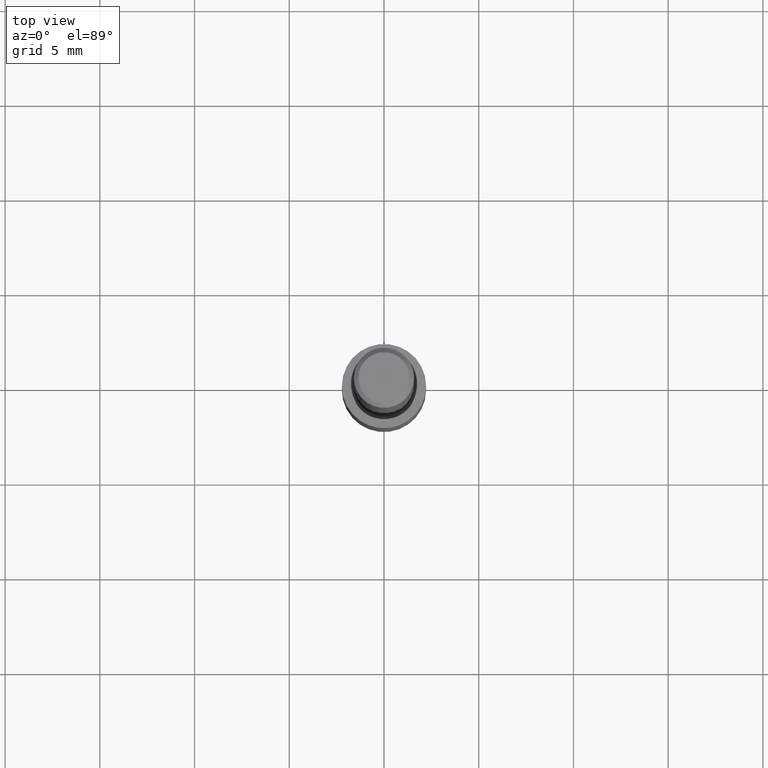
[diagram: clean part render]
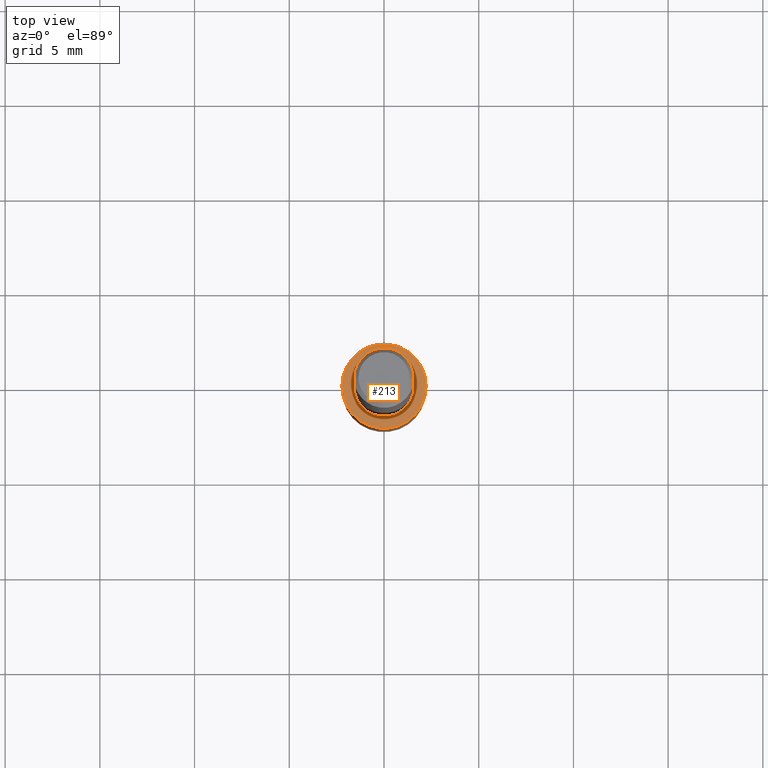
[diagram: same view with one face highlighted and labeled with its STEP entity id]
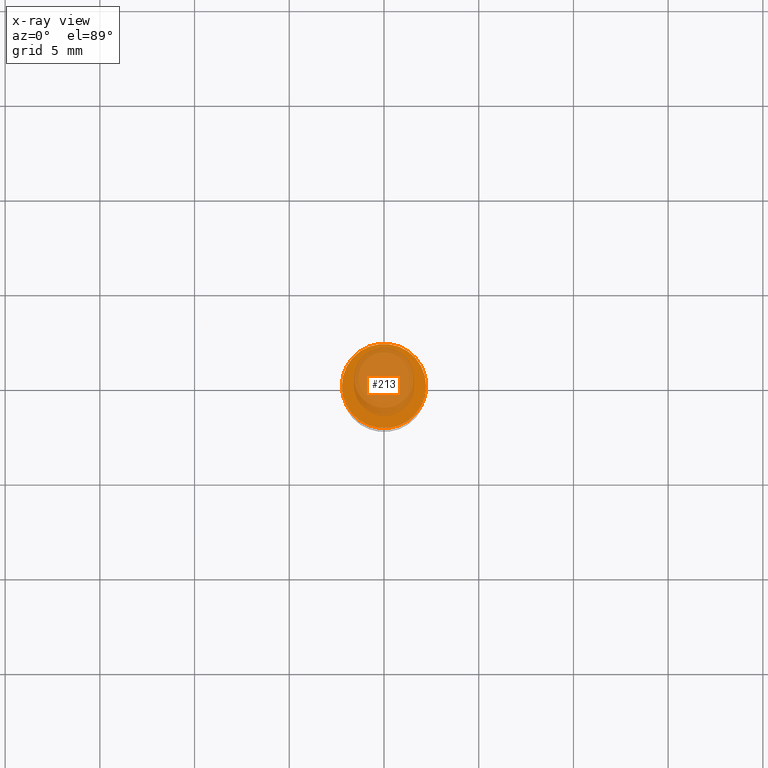
[diagram: x-ray of the same camera — body ghosted, the highlighted face saturated]
A machine part, top view. The second image highlights one B-rep face of the part: STEP entity #213.
The next image is the same camera in x-ray: the body ghosted, the highlighted face saturated — about 59% of this face is hidden behind the body in this view.
In plain terms, the highlighted planar face has unit normal (0, -0, -1).
Its self-contained STEP definition (entity closure, byte-faithful):
#5 = DIRECTION ( 'NONE',  ( -2.445468806185136597E-29, 3.491481338843145583E-15, 1.000000000000000000 ) ) ;
#8 = CARTESIAN_POINT ( 'NONE',  ( 0.08759999999999999731, -4.103188869408462916E-15, -1.000000000000000222 ) ) ;
#34 = VERTEX_POINT ( 'NONE', #105 ) ;
#42 = EDGE_CURVE ( 'NONE', #126, #34, #115, .T. ) ;
#49 = CARTESIAN_POINT ( 'NONE',  ( 3.534303999157150341E-29, -1.932207369856694320E-15, -1.000000000000000222 ) ) ;
#58 = DIRECTION ( 'NONE',  ( -2.445468806185136597E-29, 3.491481338843145583E-15, 1.000000000000000000 ) ) ;
#86 = CARTESIAN_POINT ( 'NONE',  ( 2.445468806185136877E-29, -3.491481338843145977E-15, -1.000000000000000222 ) ) ;
#105 = CARTESIAN_POINT ( 'NONE',  ( -0.08759999999999999731, -3.670605260514662288E-15, -1.000000000000000222 ) ) ;
#106 = AXIS2_PLACEMENT_3D ( 'NONE', #49, #220, #195 ) ;
#115 = CIRCLE ( 'NONE', #302, 0.08759999999999999731 ) ;
#117 = EDGE_CURVE ( 'NONE', #34, #126, #307, .T. ) ;
#126 = VERTEX_POINT ( 'NONE', #8 ) ;
#153 = PLANE ( 'NONE',  #106 ) ;
#195 = DIRECTION ( 'NONE',  ( -1.000000000000000000, 6.982962677686265922E-15, -4.876176775795935793E-29 ) ) ;
#204 = AXIS2_PLACEMENT_3D ( 'NONE', #86, #5, #257 ) ;
#213 = ADVANCED_FACE ( 'NONE', ( #279 ), #153, .F. ) ;
#220 = DIRECTION ( 'NONE',  ( 2.438088387897960049E-29, -3.491481338843145188E-15, -1.000000000000000000 ) ) ;
#230 = ORIENTED_EDGE ( 'NONE', *, *, #117, .T. ) ;
#244 = EDGE_LOOP ( 'NONE', ( #276, #230 ) ) ;
#257 = DIRECTION ( 'NONE',  ( 1.000000000000000000, -6.982962677686269077E-15, 0.000000000000000000 ) ) ;
#276 = ORIENTED_EDGE ( 'NONE', *, *, #42, .T. ) ;
#279 = FACE_OUTER_BOUND ( 'NONE', #244, .T. ) ;
#291 = DIRECTION ( 'NONE',  ( 1.000000000000000000, -6.982962677686269077E-15, 0.000000000000000000 ) ) ;
#302 = AXIS2_PLACEMENT_3D ( 'NONE', #313, #58, #291 ) ;
#307 = CIRCLE ( 'NONE', #204, 0.08759999999999999731 ) ;
#313 = CARTESIAN_POINT ( 'NONE',  ( 2.445468806185136877E-29, -3.491481338843145977E-15, -1.000000000000000222 ) ) ;